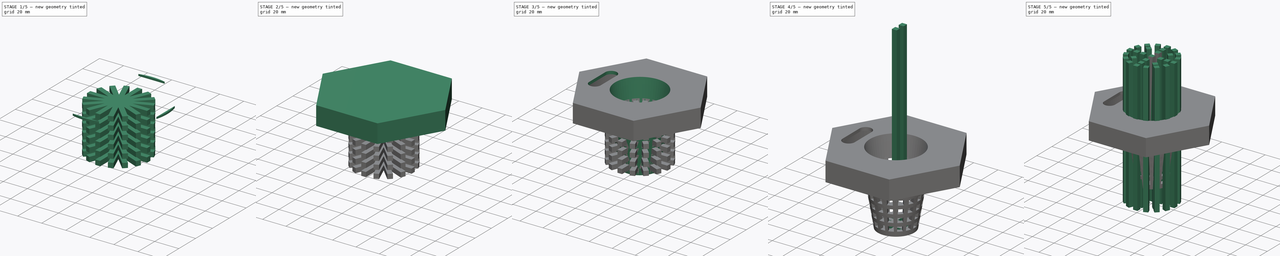
[diagram: build sequence overview — one tinted view per stage of 5, left to right]
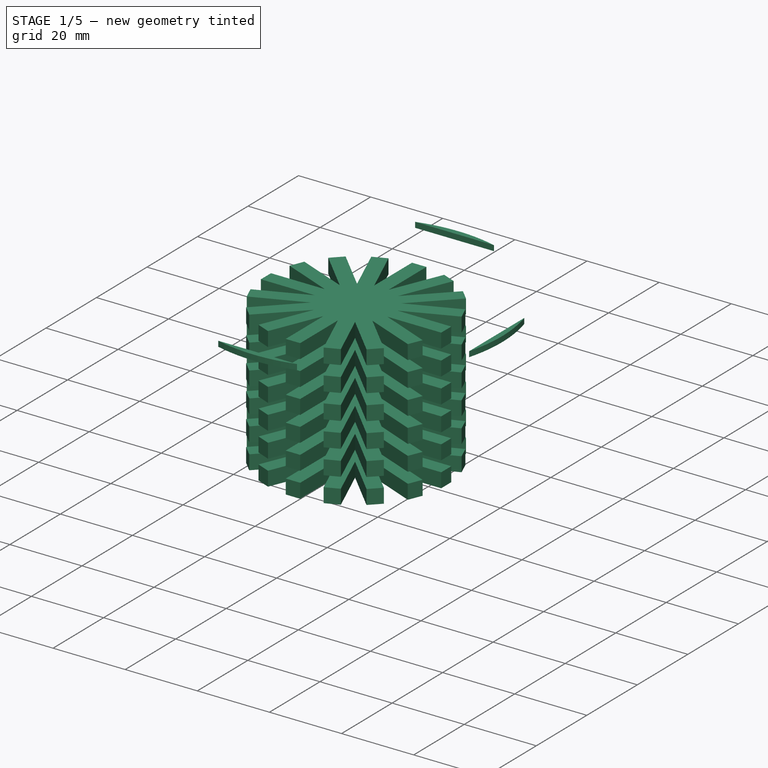
[diagram: stage 1 of 5 — iso view after this stage's code; geometry added in this stage tinted green]
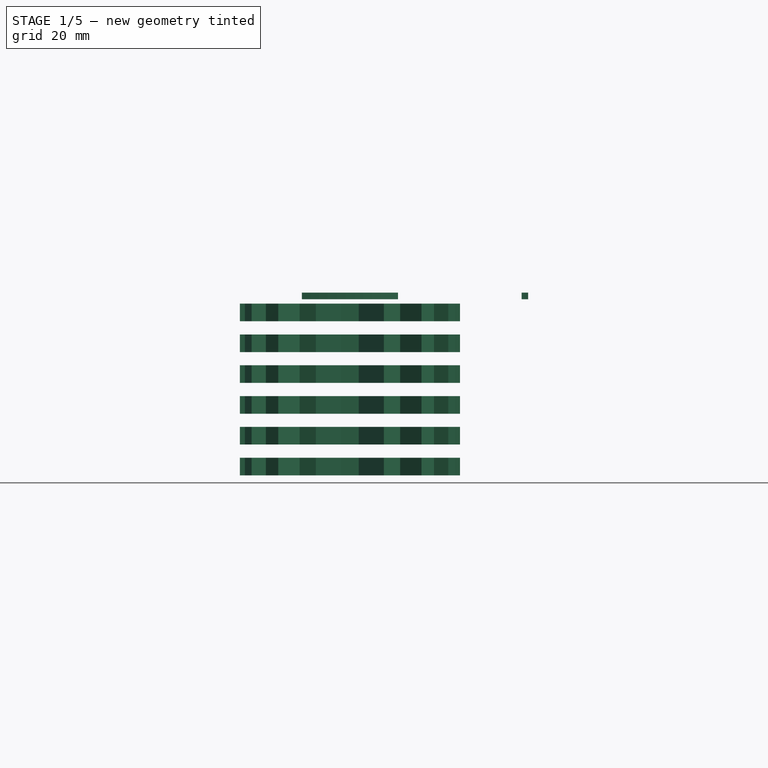
[diagram: stage 1 of 5 — front view after this stage's code; geometry added in this stage tinted green]
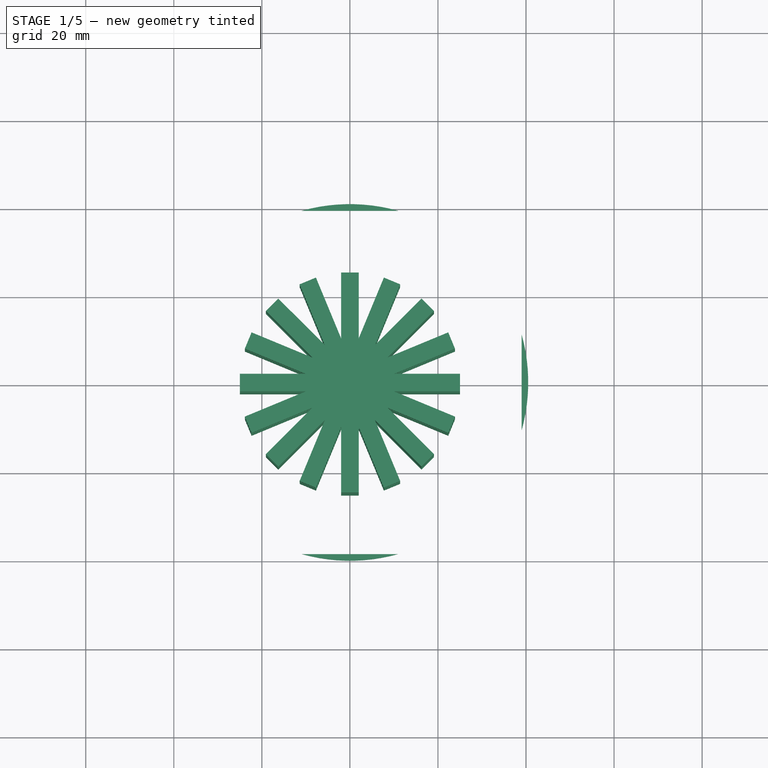
[diagram: stage 1 of 5 — top view after this stage's code; geometry added in this stage tinted green]
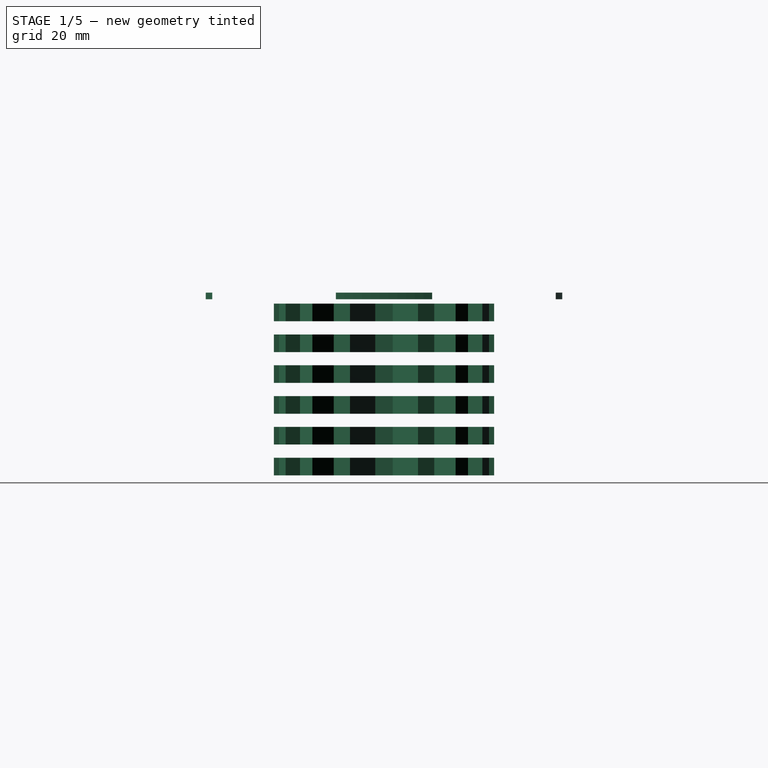
[diagram: stage 1 of 5 — right view after this stage's code; geometry added in this stage tinted green]
FCSTD DOCUMENT  (FreeCAD 0.19R24267 +148 (Git))
Label: HydroLid
License: All rights reserved
LicenseURL: http://en.wikipedia.org/wiki/All_rights_reserved
objects: Sketcher::SketchObject×7, Part::Extrusion×7, Part::Box×6, Part::FeaturePython×6, Part::Cut×5, Part::Cone×2, Part::Compound×2, Part::Fuse×2, Spreadsheet::Sheet×1, App::Part×1
note: 31 computed .brp shape members not serialized (recipe doc carries the construction recipe); baked Part::Feature solids carry a one-line shape summary decoded from their .brp

FEATURE [Part::Extrusion] Extrude001  label="teeth_extrude1"
  Base = -> MirroredSketch
  Dir = (0,0,1)
  DirMode = 2
  FaceMakerClass = Part::FaceMakerBullseye
  LengthFwd = 1.5
  LengthRev = 0
  Solid = true
  Symmetric = false
  expr: LengthFwd = <<parameters>>.jar_lid_teeth_height
FEATURE [Part::Extrusion] Extrude002  label="teeth_extrude2"
  Base = -> MirroredSketch001
  Dir = (0,0,1)
  DirMode = 2
  FaceMakerClass = Part::FaceMakerBullseye
  LengthFwd = 1.5
  LengthRev = 0
  Solid = true
  Symmetric = false
  expr: LengthFwd = <<parameters>>.jar_lid_teeth_height
FEATURE [Part::Extrusion] Extrude003  label="teeth_extrude3"
  Base = -> MirroredSketch002
  Dir = (0,0,1)
  DirMode = 2
  FaceMakerClass = Part::FaceMakerBullseye
  LengthFwd = 1.5
  LengthRev = 0
  Solid = true
  Symmetric = false
  expr: LengthFwd = <<parameters>>.jar_lid_teeth_height
FEATURE [Part::Box] Box004  label="cage_hole_prim"
  AttacherType = Attacher::AttachEngine3D
  Height = 4
  Length = 50
  Placement = pos=(-25,-2,-40) rot=(0,0,1;0rad)
  Width = 4
  expr: .Placement.Base.z = -<<parameters>>.cage_height + <<parameters>>.hexagon_body_height + <<parameters>>.cage_box_spacing + 1mm
  expr: .Placement.Base.y = -<<parameters>>.cage_box_width / 2
  expr: .Placement.Base.x = -<<parameters>>.cage_top_diameter / 2
  expr: Length = <<parameters>>.cage_top_diameter
  expr: Height = <<parameters>>.cage_box_width
  expr: Width = <<parameters>>.cage_box_width
FEATURE [Part::FeaturePython] Array003  label="cage_holes_vertical_array"  # Draft array (typed FeaturePython)
  Angle = 360
  ArrayType = 0
  Axis = (0,0,1)
  Base = -> Box004
  Center = (0,0,0)
  Count = 6
  ExpandArray = false
  Fuse = false
  IntervalAxis = (0,0,0)
  IntervalX = (0,0,0)
  IntervalY = (0,0,0)
  IntervalZ = (0,0,7)
  NumberCircles = 3
  NumberPolar = 5
  NumberX = 1
  NumberY = 1
  NumberZ = 6
  PlacementList = 6 placements: arithmetic series from (-25,-2,-40) step (0,0,7) to (-25,-2,-5)
  RadialDistance = 50
  ScaleList = (6) [(1,1,1),(1,1,1),(1,1,1),(1,1,1),(1,1,1),(1,1,1)]
  Symmetry = 1
  TangentialDistance = 25
  expr: .IntervalZ.z = <<parameters>>.cage_box_width + <<parameters>>.cage_box_spacing
FEATURE [Part::FeaturePython] Array004  label="cage_box_polar_array"  # Draft array (typed FeaturePython)
  Angle = 360
  ArrayType = 1
  Axis = (0,0,1)
  Base = -> Array003
  Center = (0,0,0)
  Count = 16
  ExpandArray = false
  Fuse = false
  IntervalAxis = (0,0,0)
  IntervalX = (50,0,0)
  IntervalY = (0,50,0)
  IntervalZ = (0,0,50)
  NumberCircles = 3
  NumberPolar = 16
  NumberX = 2
  NumberY = 2
  NumberZ = 1
  PlacementList = 16 placements: [(0,0,0),(0,0,0),(0,0,0),(0,0,0),(0,0,0),(0,0,0),(0,0,0),(0,0,0),(0,0,0),(0,0,0),(0,0,0),(0,0,0),(0,0,0),(0,0,0),(0,0,0),(0,0,0)]
  RadialDistance = 50
  ScaleList = (16) [(1,1,1),(1,1,1),(1,1,1),(1,1,1),(1,1,1),(1,1,1),(1,1,1),(1,1,1),(1,1,1),(1,1,1),(1,1,1),(1,1,1),(1,1,1),(1,1,1),(1,1,1),(1,1,1)]
  Symmetry = 1
  TangentialDistance = 25
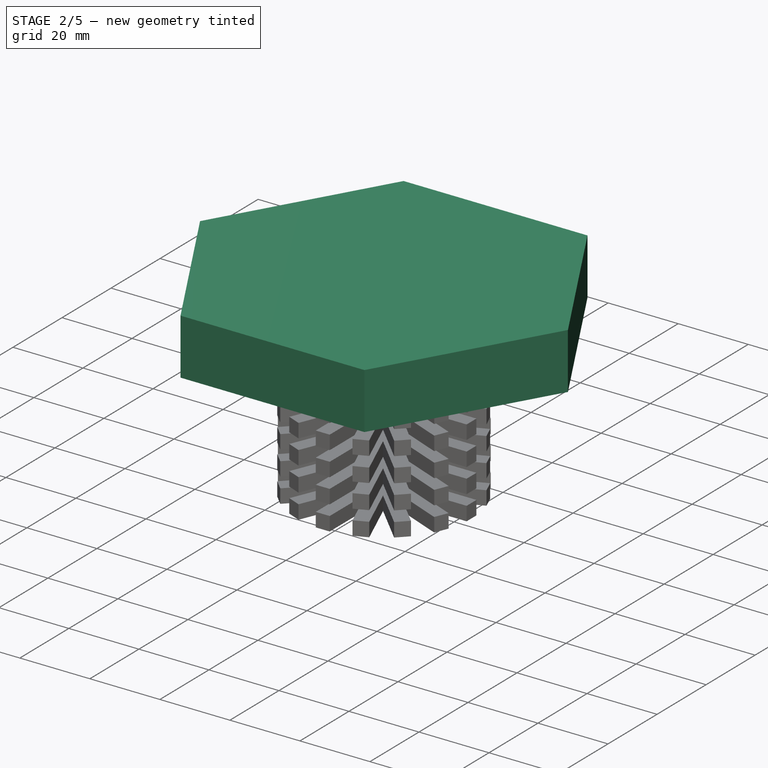
[diagram: stage 2 of 5 — iso view after this stage's code; geometry added in this stage tinted green]
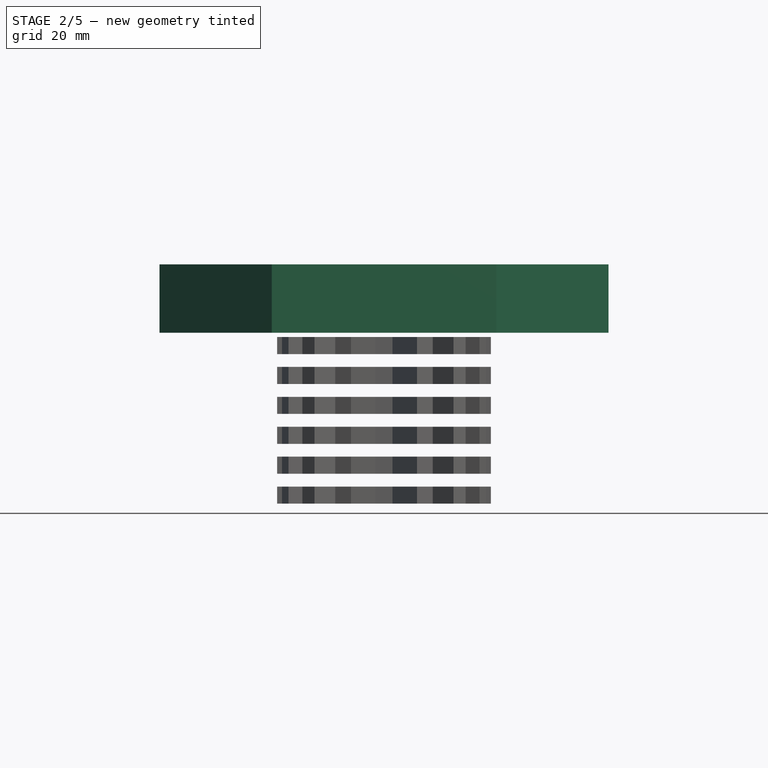
[diagram: stage 2 of 5 — front view after this stage's code; geometry added in this stage tinted green]
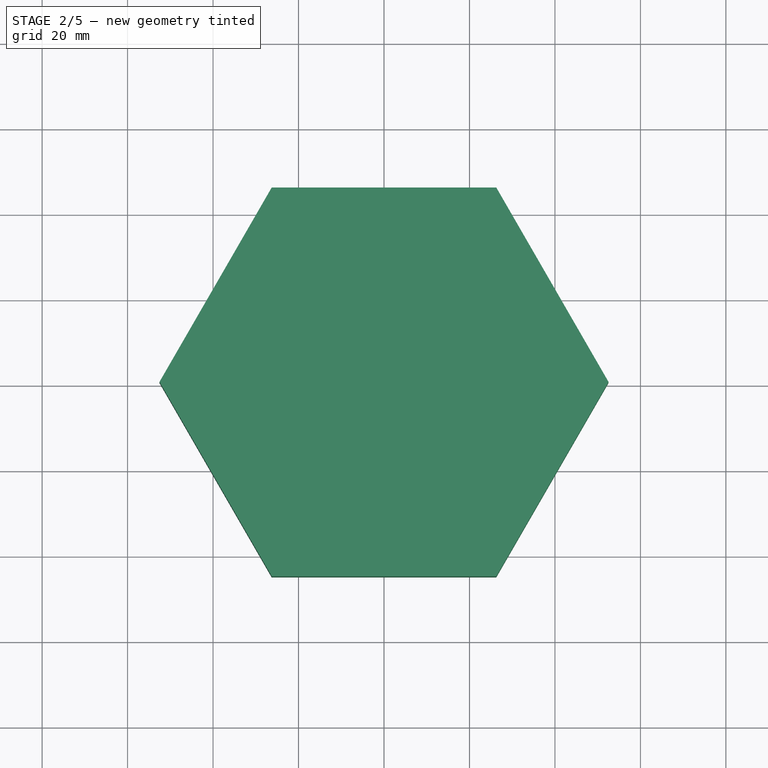
[diagram: stage 2 of 5 — top view after this stage's code; geometry added in this stage tinted green]
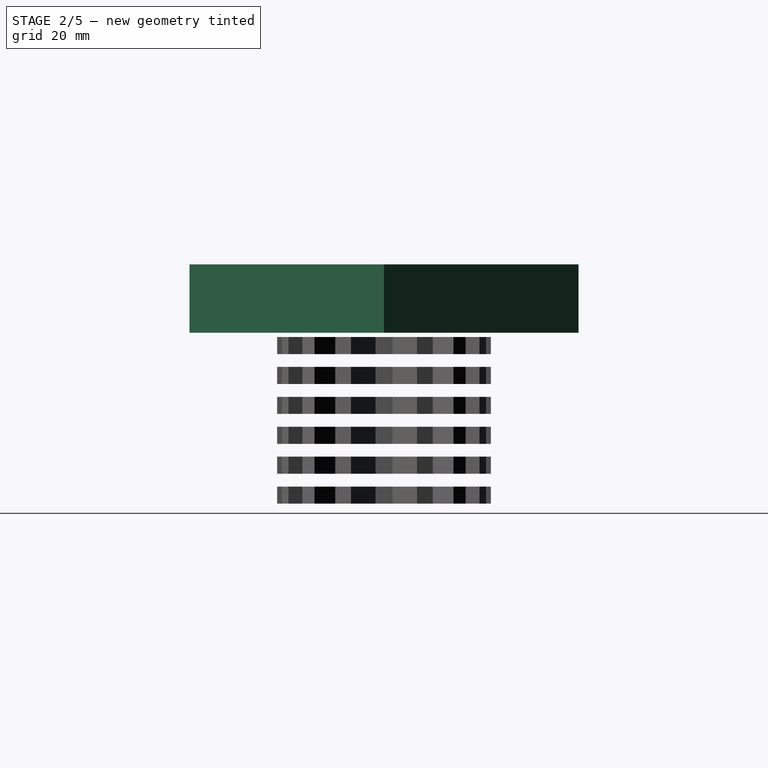
[diagram: stage 2 of 5 — right view after this stage's code; geometry added in this stage tinted green]
FEATURE [Sketcher::SketchObject] Sketch005  label="watering_hole"
  FullyConstrained = true
  MapMode = 5
  expr: Constraints[9] = <<parameters>>.watering_hole_width
  expr: Constraints[8] = Spreadsheet.watering_hole_length
  expr: Constraints[7] = Spreadsheet.watering_hole_length / 2
  expr: Constraints[6] = <<parameters>>.cage_top_diameter / 2 + 2mm
  sketch-geometry (4):
    g0: ArcOfCircle CenterX=-32 CenterY=-10 CenterZ=0 NormalX=0 NormalY=0 NormalZ=1 AngleXU=0 Radius=5 StartAngle=3.14159 EndAngle=6.28319
    g1: ArcOfCircle CenterX=-32 CenterY=10 CenterZ=0 NormalX=0 NormalY=0 NormalZ=1 AngleXU=0 Radius=5 StartAngle=1e-16 EndAngle=3.14159
    g2: LineSegment StartX=-27 StartY=-10 StartZ=0 EndX=-27 EndY=10 EndZ=0
    g3: LineSegment StartX=-37 StartY=-10 StartZ=0 EndX=-37 EndY=10 EndZ=0
  constraints (10):
    c: Tangent(g0,g3) = 1.5708
    c: Tangent(g0,g2) = -1.5708
    c: Tangent(g2,g1) = -1.5708
    c: Tangent(g3,g1) = 1.5708
    c: Vertical(g2)
    c: Equal(g0,g1)
    c: DistanceX(g1,g-1) = 27
    c: DistanceY(g-1,g1) = 10
    c: DistanceY(g0,g1) = 20
    c: DistanceX(g0,g0) = 10
FEATURE [Sketcher::SketchObject] MirroredSketch  label="teeth1"
  FullyConstrained = false
  sketch-geometry (4):
    g0: GeomPoint X=0 Y=-40.5 Z=0
    g1: LineSegment StartX=10.9202 StartY=-39 StartZ=0 EndX=-10.9202 EndY=-39 EndZ=0
    g2: GeomPoint X=0 Y=-39 Z=0
    g3: ArcOfCircle CenterX=1.5e-15 CenterY=-1.63e-14 CenterZ=0 NormalX=0 NormalY=0 NormalZ=1 AngleXU=0 Radius=40.5 StartAngle=4.43938 EndAngle=4.9854
  constraints (5):
    c: Horizontal(g1)
    c: PointOnObject(g2,g1)
    c: Coincident(g3,g1)
    c: Coincident(g3,g1)
    c: PointOnObject(g0,g3)
FEATURE [Sketcher::SketchObject] MirroredSketch001  label="teeth2"
  FullyConstrained = false
  sketch-geometry (4):
    g0: LineSegment StartX=39 StartY=-10.9202 StartZ=0 EndX=39 EndY=10.9202 EndZ=0
    g1: GeomPoint X=39 Y=0 Z=0
    g2: ArcOfCircle CenterX=0 CenterY=0 CenterZ=0 NormalX=0 NormalY=0 NormalZ=1 AngleXU=0 Radius=40.5 StartAngle=6.01017 EndAngle=6.5562
    g3: GeomPoint X=40.5 Y=0 Z=0
  constraints (4):
    c: Vertical(g0)
    c: PointOnObject(g1,g0)
    c: Coincident(g2,g0)
    c: Coincident(g2,g0)
FEATURE [Sketcher::SketchObject] MirroredSketch002  label="teeth3"
  FullyConstrained = false
  sketch-geometry (4):
    g0: GeomPoint X=0 Y=40.5 Z=0
    g1: LineSegment StartX=-10.9202 StartY=39 StartZ=0 EndX=10.9202 EndY=39 EndZ=0
    g2: GeomPoint X=0 Y=39 Z=0
    g3: ArcOfCircle CenterX=-1.5e-15 CenterY=1.63e-14 CenterZ=0 NormalX=0 NormalY=0 NormalZ=1 AngleXU=0 Radius=40.5 StartAngle=1.29778 EndAngle=1.84381
  constraints (5):
    c: Horizontal(g1)
    c: PointOnObject(g2,g1)
    c: Coincident(g3,g1)
    c: Coincident(g3,g1)
    c: PointOnObject(g0,g3)
FEATURE [Part::Extrusion] Extrude  label="teeth_extrude0"
  Base = -> Sketch003
  Dir = (0,0,1)
  DirMode = 2
  FaceMakerClass = Part::FaceMakerBullseye
  LengthFwd = 1.5
  LengthRev = 0
  Solid = true
  Symmetric = false
  expr: LengthFwd = <<parameters>>.jar_lid_teeth_height
FEATURE [Part::Extrusion] Extrude004  label="hex_extrude"
  Base = -> Sketch
  Dir = (0,0,1)
  DirMode = 2
  FaceMakerClass = Part::FaceMakerBullseye
  LengthFwd = 16
  LengthRev = 0
  Solid = true
  Symmetric = false
  expr: LengthFwd = <<parameters>>.hexagon_body_height
FEATURE [Part::Extrusion] Extrude005  label="lid_extrude"
  Base = -> Sketch001
  Dir = (0,0,1)
  DirMode = 2
  FaceMakerClass = Part::FaceMakerBullseye
  LengthFwd = 13.4
  LengthRev = 0
  Solid = true
  Symmetric = false
  expr: LengthFwd = Spreadsheet.jar_lid_height
FEATURE [Part::Cut] Cut  label="hex_lid_cut"
  Base = -> Extrude004
  Tool = -> Extrude005
FEATURE [Part::Compound] Compound001  label="teeth_compound"
  Links = -> [Extrude002,Extrude001,Extrude003,Extrude]
FEATURE [Part::Fuse] Fusion  label="lid_teeth_fuse"
  Base = -> Cut
  Tool = -> Compound001
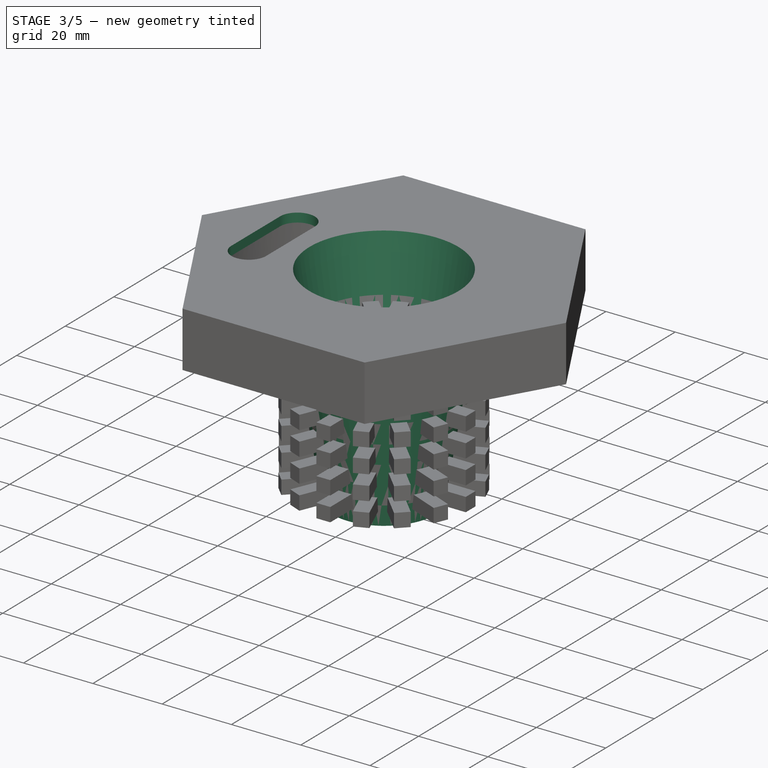
[diagram: stage 3 of 5 — iso view after this stage's code; geometry added in this stage tinted green]
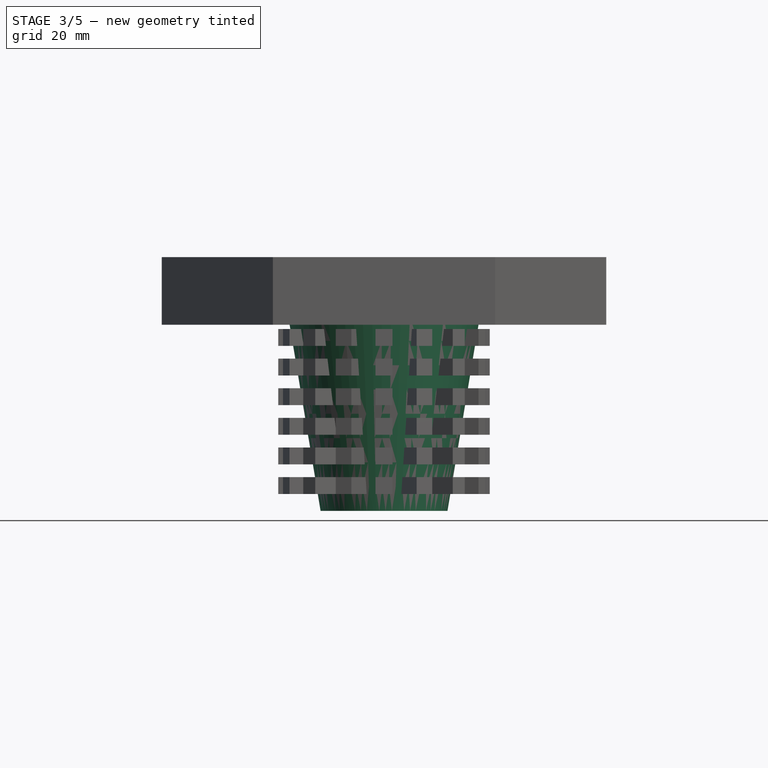
[diagram: stage 3 of 5 — front view after this stage's code; geometry added in this stage tinted green]
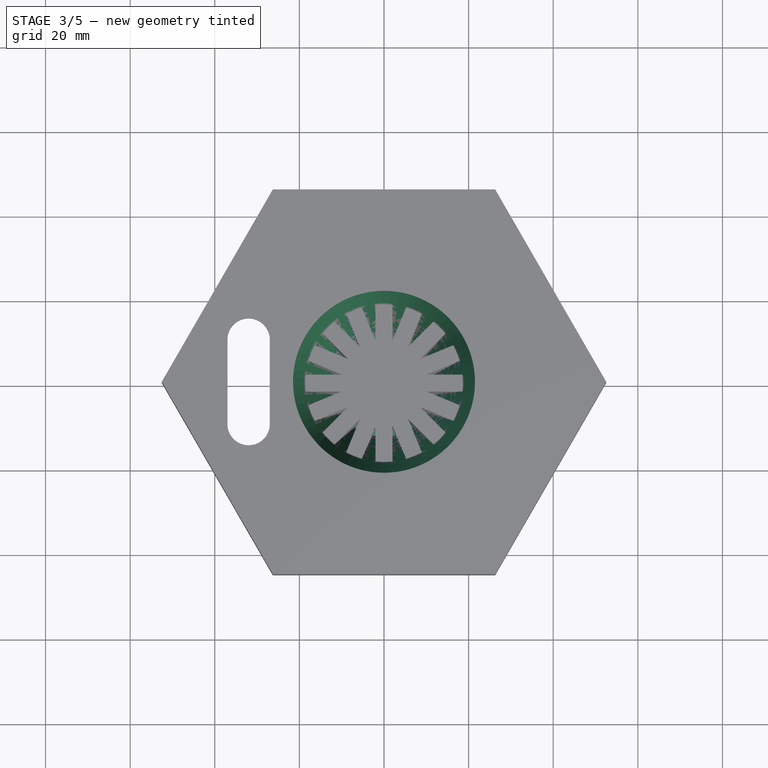
[diagram: stage 3 of 5 — top view after this stage's code; geometry added in this stage tinted green]
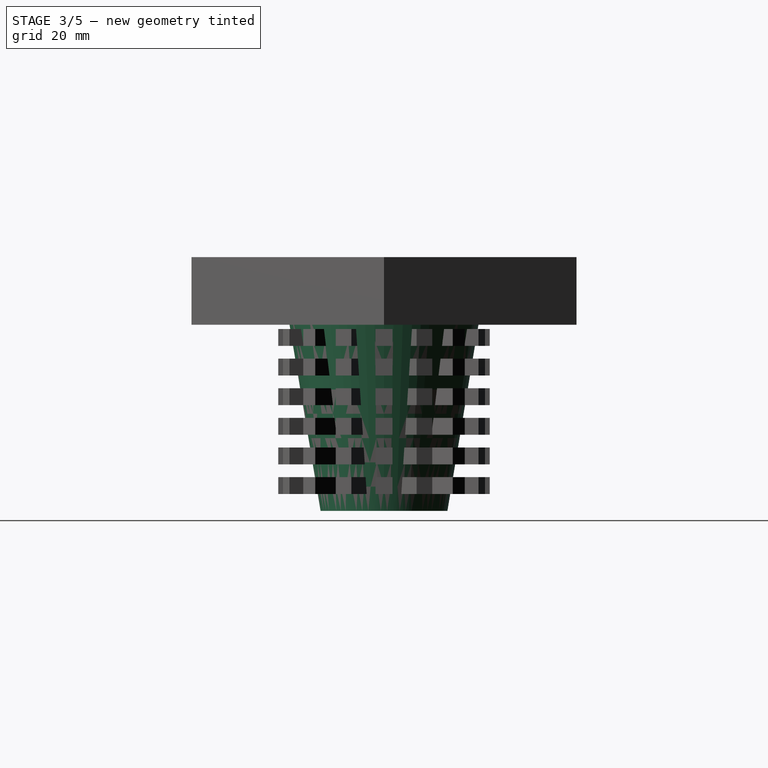
[diagram: stage 3 of 5 — right view after this stage's code; geometry added in this stage tinted green]
FEATURE [Spreadsheet::Sheet] Spreadsheet  label="parameters"
  cells = A1=Variable Parameters; A2=jar_lid_diameter; B2(jar_lid_diameter)==81mm; A3=watering_hole_width; B3(watering_hole_width)==10mm; A4=watering_hole_length; B4(watering_hole_length)==20mm; A5=cage_top_diameter; B5(cage_top_diameter)==50mm; A6=cage_bottom_diameter; B6(cage_bottom_diameter)==30mm; A7=cage_height; B7(cage_height)==60mm; A11=Design Parameters; A12=jar_lid_height; B12(jar_lid_height)==13.4mm; A13=jar_lid_teeth; B13(jar_lid_teeth)==1.5mm; A14=jar_lid_teeth_height; B14(jar_lid_teeth_height)==1.5mm; A15=hexagon_meat; B15(hexagon_meat)==5mm; A16=hexagon_radius; B16(hexagon_radius)==(jar_lid_diameter / 2 + hexagon_meat) / 0.866; A17=hexagon_body_height; B17(hexagon_body_height)==16mm; A18=cage_meat; B18(cage_meat)==3mm; A19=cage_box_width; B19(cage_box_width)==4mm; A20=cage_box_spacing; B20(cage_box_spacing)==3mm
FEATURE [Sketcher::SketchObject] Sketch  label="hex_body"
  FullyConstrained = true
  expr: Constraints[19] = Spreadsheet.hexagon_radius
  sketch-geometry (7):
    g0: LineSegment StartX=52.5404 StartY=0 StartZ=0 EndX=26.2702 EndY=45.5013 EndZ=0
    g1: LineSegment StartX=26.2702 StartY=45.5013 StartZ=0 EndX=-26.2702 EndY=45.5013 EndZ=0
    g2: LineSegment StartX=-26.2702 StartY=45.5013 StartZ=0 EndX=-52.5404 EndY=7.1e-15 EndZ=0
    g3: LineSegment StartX=-52.5404 StartY=7.1e-15 StartZ=0 EndX=-26.2702 EndY=-45.5013 EndZ=0
    g4: LineSegment StartX=-26.2702 StartY=-45.5013 StartZ=0 EndX=26.2702 EndY=-45.5013 EndZ=0
    g5: LineSegment StartX=26.2702 StartY=-45.5013 StartZ=0 EndX=52.5404 EndY=0 EndZ=0
    g6: Circle CenterX=0 CenterY=0 CenterZ=0 NormalX=0 NormalY=0 NormalZ=1 AngleXU=0 Radius=52.5404
  constraints (16):
    c: Coincident(g0,g1)
    c: Coincident(g1,g2)
    c: Coincident(g2,g3)
    c: Coincident(g3,g4)
    c: Coincident(g4,g5)
    c: Coincident(g5,g0)
    c: Equal(g0, g1-g5) x5
    c: PointOnObject(g0,g6)
    c: PointOnObject(g1,g6)
    c: PointOnObject(g2,g6)
    c: PointOnObject(g3,g6)
    c: PointOnObject(g4,g6)
    c: PointOnObject(g5,g6)
    c: Coincident(g6,g-1)
    c: PointOnObject(g0,g-1)
    c: DistanceX(g-1,g0) = 52.5404
FEATURE [Sketcher::SketchObject] Sketch001  label="lid_inside"
  FullyConstrained = true
  MapMode = 2
  Support = -> [Sketch]
  expr: Constraints[1] = <<parameters>>.jar_lid_diameter / 2
  sketch-geometry (1):
    g0: Circle CenterX=0 CenterY=0 CenterZ=0 NormalX=0 NormalY=0 NormalZ=1 AngleXU=0 Radius=40.5
  constraints (2):
    c: Coincident(g0,g-1)
    c: Radius(g0) = 40.5
FEATURE [Sketcher::SketchObject] Sketch003  label="teeth0"
  ExternalGeometry = -> [Sketch001]
  FullyConstrained = true
  expr: Constraints[9] = <<parameters>>.jar_lid_teeth
  sketch-geometry (4):
    g0: LineSegment StartX=-39 StartY=10.9202 StartZ=0 EndX=-39 EndY=-10.9202 EndZ=0
    g1: GeomPoint X=-39 Y=0 Z=0
    g2: ArcOfCircle CenterX=0 CenterY=0 CenterZ=0 NormalX=0 NormalY=0 NormalZ=1 AngleXU=0 Radius=40.5 StartAngle=2.86858 EndAngle=3.41461
    g3: GeomPoint X=-40.5 Y=0 Z=0
  constraints (10):
    c: PointOnObject(g0,g-3)
    c: Vertical(g0)
    c: PointOnObject(g1,g0)
    c: PointOnObject(g1,g-1)
    c: Coincident(g2,g-1)
    c: Coincident(g2,g0)
    c: Coincident(g2,g0)
    c: PointOnObject(g3,g-3)
    c: PointOnObject(g3,g-1)
    c: DistanceX(g3,g1) = 1.5
FEATURE [Part::Cone] Cone  label="cage_out"
  Angle = 360
  AttacherType = Attacher::AttachEngine3D
  Height = 60
  Placement = pos=(0,0,-44) rot=(0,0,1;0rad)
  Radius1 = 15
  Radius2 = 25
  expr: Radius1 = <<parameters>>.cage_bottom_diameter / 2
  expr: Radius2 = <<parameters>>.cage_top_diameter / 2
  expr: .Placement.Base.z = -<<parameters>>.cage_height + <<parameters>>.hexagon_body_height
  expr: Height = <<parameters>>.cage_height
FEATURE [Part::Cone] Cone001  label="cage_inner"
  Angle = 360
  AttacherType = Attacher::AttachEngine3D
  Height = 60
  Placement = pos=(0,0,-41) rot=(0,0,1;0rad)
  Radius1 = 12
  Radius2 = 22
  expr: .Placement.Base.z = -<<parameters>>.cage_height + <<parameters>>.hexagon_body_height + <<parameters>>.cage_meat
  expr: Radius1 = <<parameters>>.cage_bottom_diameter / 2 - <<parameters>>.cage_meat
  expr: Radius2 = <<parameters>>.cage_top_diameter / 2 - <<parameters>>.cage_meat
  expr: Height = <<parameters>>.cage_height
FEATURE [Part::Extrusion] Extrude006  label="water_hole_extrude"
  Base = -> Sketch005
  Dir = (0,0,1)
  DirMode = 2
  FaceMakerClass = Part::FaceMakerBullseye
  LengthFwd = 16
  LengthRev = 0
  Solid = true
  Symmetric = false
  expr: LengthFwd = <<parameters>>.hexagon_body_height
FEATURE [Part::Fuse] Fusion001  label="lid_cage_fuse"
  Base = -> Cone
  Tool = -> Fusion
FEATURE [Part::Cut] Cut001  label="lid_cage_cut"
  Base = -> Fusion001
  Tool = -> Cone001
FEATURE [Part::Cut] Cut002  label="lid_hole_cut"
  Base = -> Cut001
  Tool = -> Extrude006
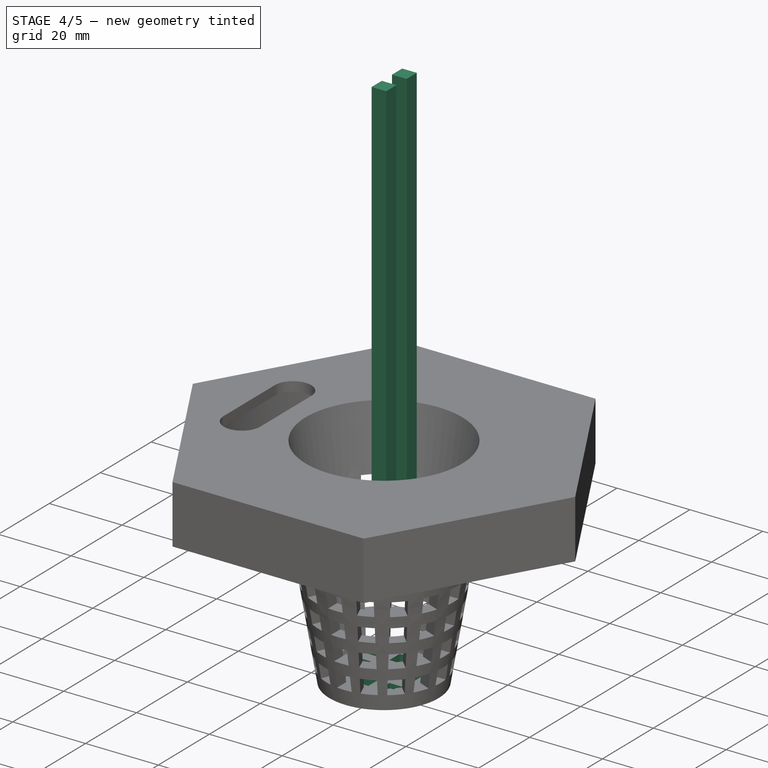
[diagram: stage 4 of 5 — iso view after this stage's code; geometry added in this stage tinted green]
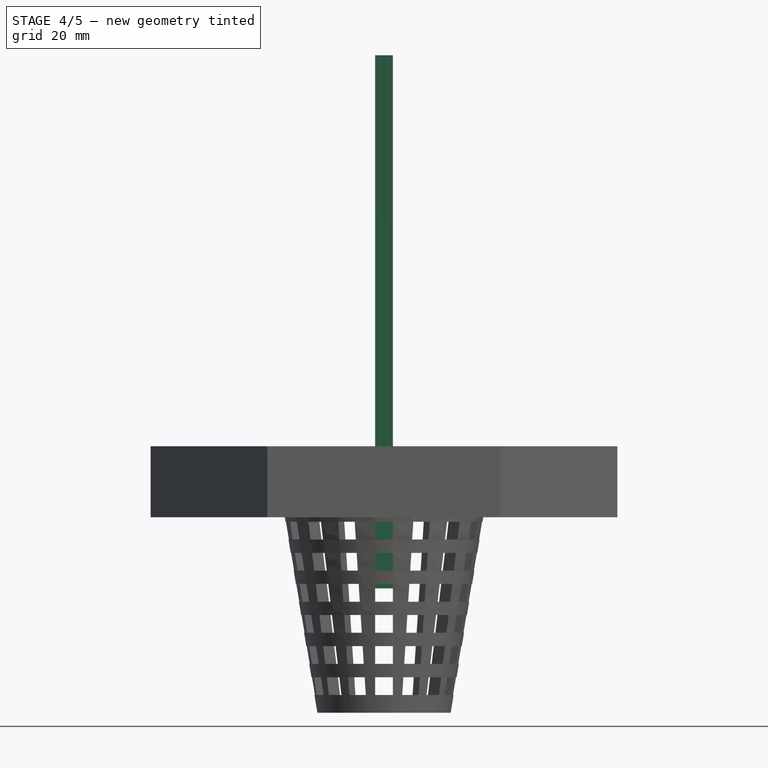
[diagram: stage 4 of 5 — front view after this stage's code; geometry added in this stage tinted green]
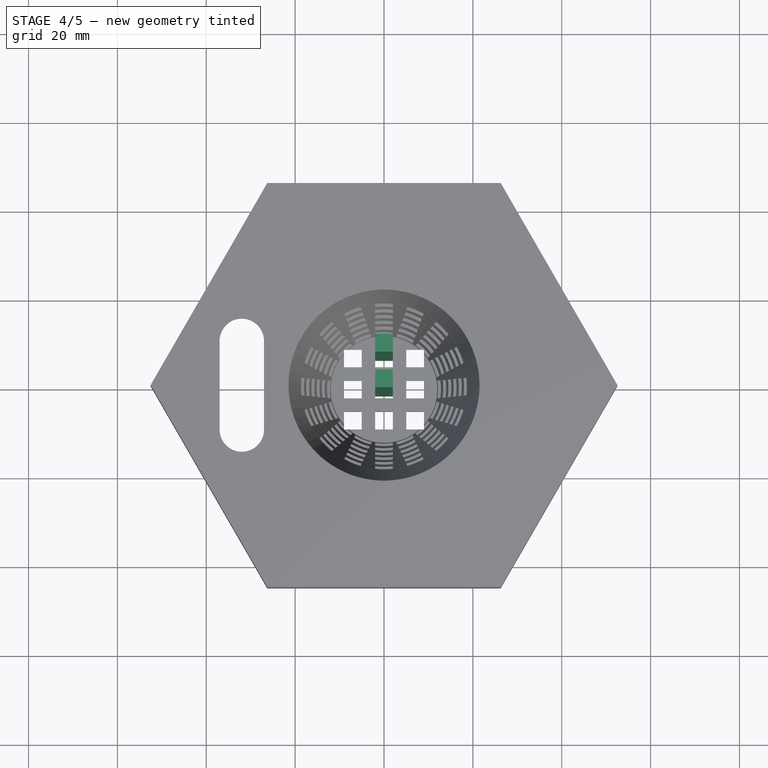
[diagram: stage 4 of 5 — top view after this stage's code; geometry added in this stage tinted green]
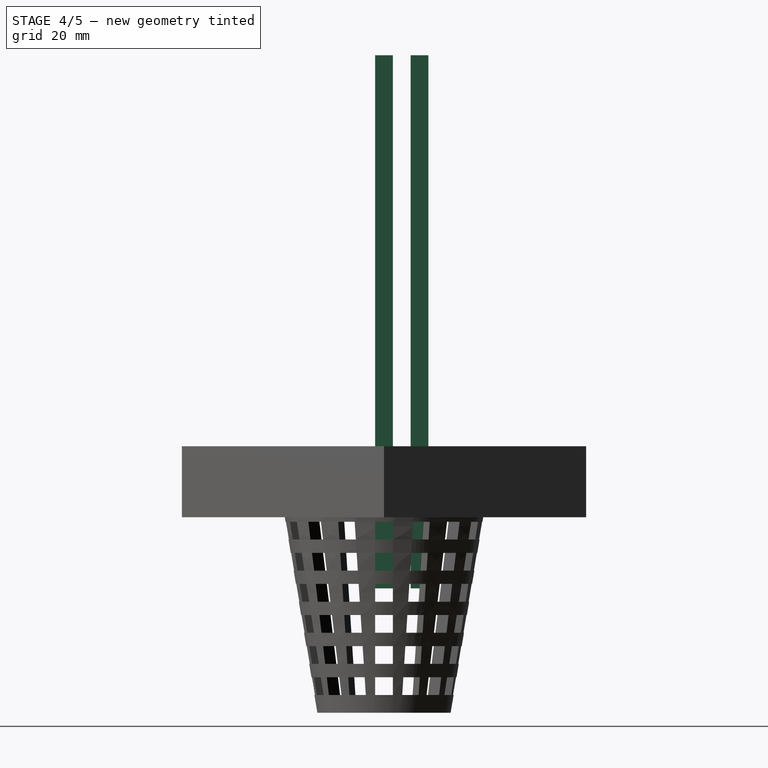
[diagram: stage 4 of 5 — right view after this stage's code; geometry added in this stage tinted green]
FEATURE [Part::Box] Box002  label="cage_inner_boxes"
  AttacherType = Attacher::AttachEngine3D
  Height = 120
  Length = 4
  Placement = pos=(-2,6,-16) rot=(0,0,1;0rad)
  Width = 4
  expr: Height = <<parameters>>.cage_height * 2
  expr: .Placement.Base.z = -<<parameters>>.hexagon_body_height
  expr: Width = <<parameters>>.cage_box_width
  expr: Length = <<parameters>>.cage_box_width
  expr: .Placement.Base.x = -<<parameters>>.cage_box_width / 2
FEATURE [Part::Box] Box003  label="Cube"
  AttacherType = Attacher::AttachEngine3D
  Height = 120
  Length = 4
  Placement = pos=(-2,-2,-16) rot=(0,0,1;0rad)
  Width = 4
  expr: Height = <<parameters>>.cage_height * 2
  expr: .Placement.Base.z = -<<parameters>>.hexagon_body_height
  expr: .Placement.Base.y = -<<parameters>>.cage_box_width / 2
  expr: .Placement.Base.x = -<<parameters>>.cage_box_width / 2
  expr: Width = <<parameters>>.cage_box_width
  expr: Length = <<parameters>>.cage_box_width
FEATURE [Part::Box] Box005  label="cage_box_bottom_prim"
  AttacherType = Attacher::AttachEngine3D
  Height = 60
  Length = 4
  Placement = pos=(-9,-9,-60) rot=(0,0,1;0rad)
  Width = 4
  expr: Height = <<parameters>>.cage_height
  expr: .Placement.Base.z = -<<parameters>>.cage_height
  expr: .Placement.Base.y = -<<parameters>>.cage_box_width / 2 - <<parameters>>.cage_box_spacing - <<parameters>>.cage_box_width
  expr: .Placement.Base.x = -<<parameters>>.cage_box_width / 2 - <<parameters>>.cage_box_spacing - <<parameters>>.cage_box_width
  expr: Length = <<parameters>>.cage_box_width
  expr: Width = <<parameters>>.cage_box_width
FEATURE [Part::FeaturePython] Array005  label="cage_box_bottom_array"  # Draft array (typed FeaturePython)
  Angle = 360
  ArrayType = 0
  Axis = (0,0,1)
  Base = -> Box005
  Center = (0,0,0)
  Count = 9
  ExpandArray = false
  Fuse = false
  IntervalAxis = (0,0,0)
  IntervalX = (7,0,0)
  IntervalY = (0,7,0)
  IntervalZ = (0,0,0)
  NumberCircles = 3
  NumberPolar = 5
  NumberX = 3
  NumberY = 3
  NumberZ = 1
  PlacementList = 9 placements: [(-9,-9,-60),(-9,-2,-60),(-9,5,-60),(-2,-9,-60),(-2,-2,-60),(-2,5,-60),(5,-9,-60),(5,-2,-60),(5,5,-60)]
  RadialDistance = 50
  ScaleList = (9) [(1,1,1),(1,1,1),(1,1,1),(1,1,1),(1,1,1),(1,1,1),(1,1,1),(1,1,1),(1,1,1)]
  Symmetry = 1
  TangentialDistance = 25
  expr: .IntervalY.y = <<parameters>>.cage_box_width + <<parameters>>.cage_box_spacing
  expr: .IntervalX.x = <<parameters>>.cage_box_width + <<parameters>>.cage_box_spacing
FEATURE [Part::Cut] Cut003  label="cage_holes_vertical_cut"
  Base = -> Cut002
  Tool = -> Array004
FEATURE [Part::Cut] Cut004  label="cage_holes_bottom_cut"
  Base = -> Cut003
  Tool = -> Array005
FEATURE [App::Part] Part  label="HydroLid"
  Group = -> [MirroredSketch,Extrude001,MirroredSketch001,Extrude002,MirroredSketch002,Extrude003,Sketch003,Sketch,Sketch001,Extrude,Extrude004,Extrude005,Sketch005,Extrude006,Cone001,Cone,Cut,Compound001,Fusion,Fusion001,Cut001,Cut002,Box004,Array003,Array004,Box005,Array005,Cut003,Cut004]
  Origin = -> Origin
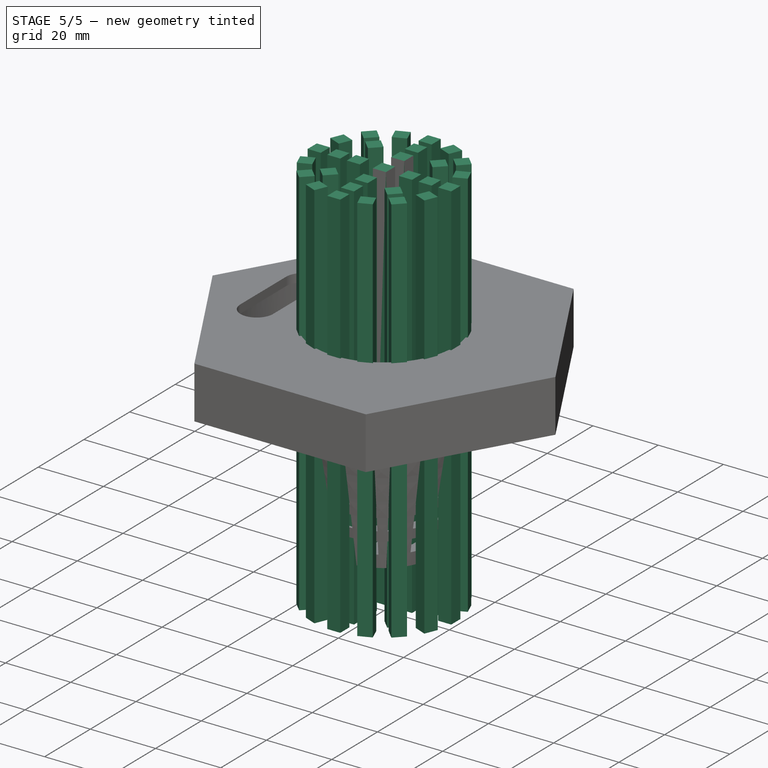
[diagram: stage 5 of 5 — iso view after this stage's code; geometry added in this stage tinted green]
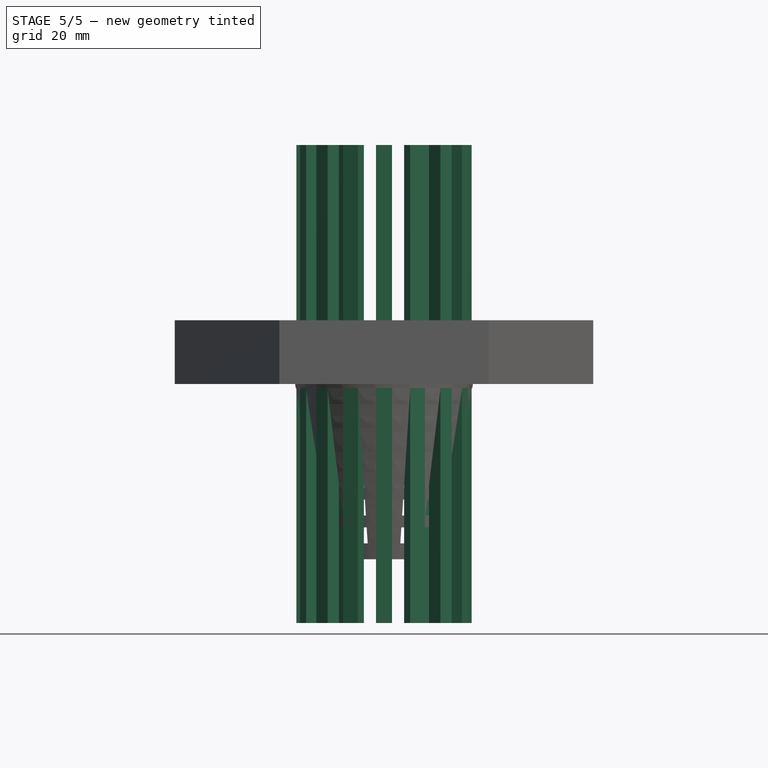
[diagram: stage 5 of 5 — front view after this stage's code; geometry added in this stage tinted green]
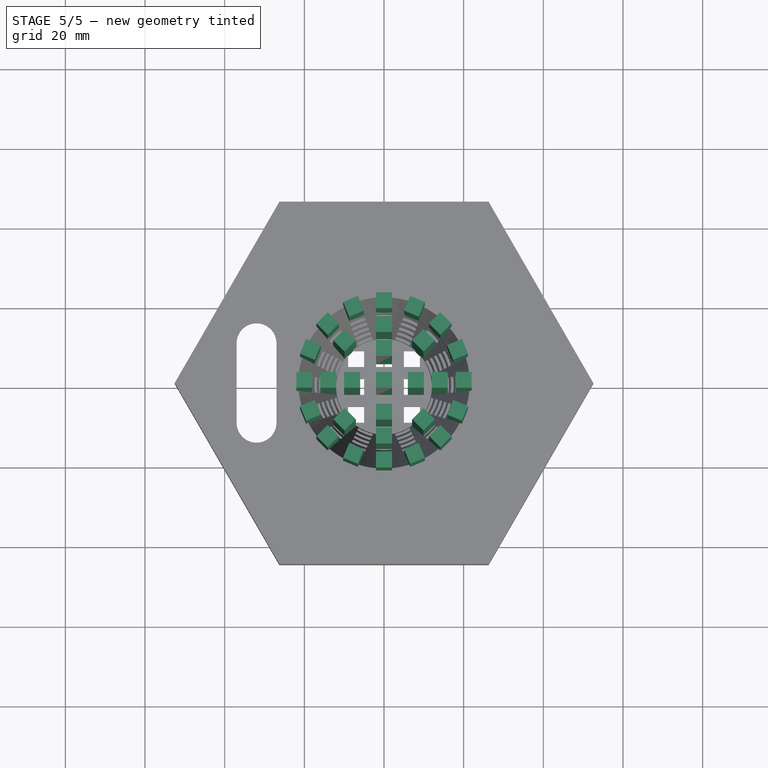
[diagram: stage 5 of 5 — top view after this stage's code; geometry added in this stage tinted green]
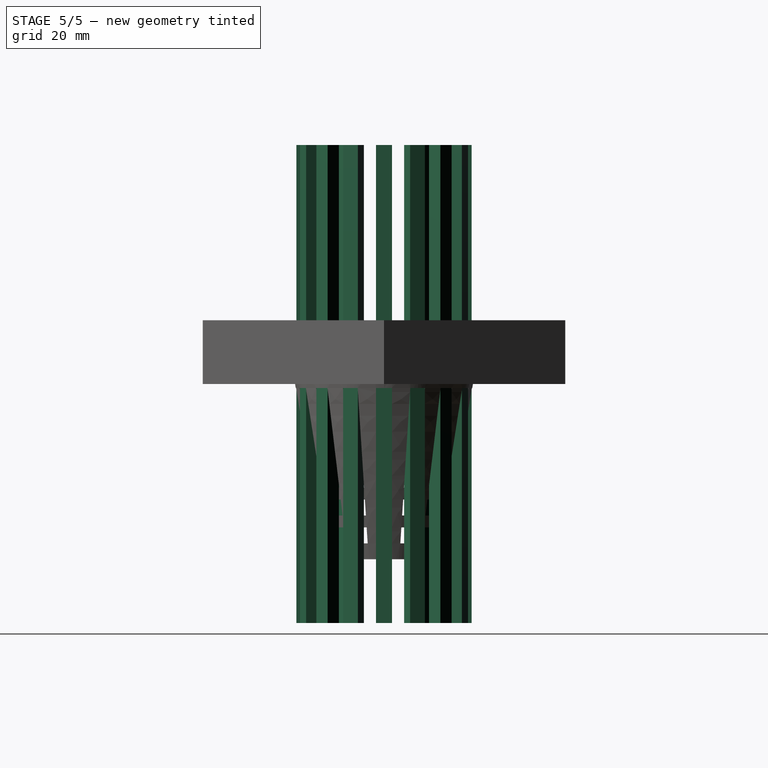
[diagram: stage 5 of 5 — right view after this stage's code; geometry added in this stage tinted green]
FEATURE [Part::Box] Box  label="cage_outer_boxes"
  AttacherType = Attacher::AttachEngine3D
  Height = 120
  Length = 4
  Placement = pos=(-2,18,-16) rot=(0,0,1;0rad)
  Width = 4
  expr: Height = <<parameters>>.cage_height * 2
  expr: .Placement.Base.z = -<<parameters>>.hexagon_body_height
  expr: Length = <<parameters>>.cage_box_width
  expr: Width = <<parameters>>.cage_box_width
  expr: .Placement.Base.x = -<<parameters>>.cage_box_width / 2
FEATURE [Part::Box] Box001  label="cage_middle_boxes"
  AttacherType = Attacher::AttachEngine3D
  Height = 120
  Length = 4
  Placement = pos=(-2,12,-16) rot=(0,0,1;0rad)
  Width = 4
  expr: Height = <<parameters>>.cage_height * 2
  expr: .Placement.Base.z = -<<parameters>>.hexagon_body_height
  expr: .Placement.Base.x = -<<parameters>>.cage_box_width / 2
  expr: Width = <<parameters>>.cage_box_width
  expr: Length = <<parameters>>.cage_box_width
FEATURE [Part::FeaturePython] Array  # Draft array (typed FeaturePython)
  Angle = 360
  ArrayType = 1
  Axis = (0,0,1)
  Base = -> Box
  Center = (0,0,0)
  Count = 16
  ExpandArray = false
  Fuse = false
  IntervalAxis = (0,0,0)
  IntervalX = (50,0,0)
  IntervalY = (0,50,0)
  IntervalZ = (0,0,50)
  NumberCircles = 3
  NumberPolar = 16
  NumberX = 2
  NumberY = 2
  NumberZ = 1
  PlacementList = 16 placements: [(-2,18,-16),(-8.73606,15.8645,-16),(-14.1421,11.3137,-16),(-17.3952,5.04054,-16),(-18,-2,-16),(-15.8645,-8.73606,-16),(-11.3137,-14.1421,-16),(-5.04054,-17.3952,-16),(2,-18,-16),(8.73606,-15.8645,-16),(14.1421,-11.3137,-16),(17.3952,-5.04054,-16),(18,2,-16),(15.8645,8.73606,-16),(11.3137,14.1421,-16),(5.04054,17.3952,-16)]
  RadialDistance = 50
  ScaleList = (16) [(1,1,1),(1,1,1),(1,1,1),(1,1,1),(1,1,1),(1,1,1),(1,1,1),(1,1,1),(1,1,1),(1,1,1),(1,1,1),(1,1,1),(1,1,1),(1,1,1),(1,1,1),(1,1,1)]
  Symmetry = 1
  TangentialDistance = 25
FEATURE [Part::FeaturePython] Array001  # Draft array (typed FeaturePython)
  Angle = 360
  ArrayType = 1
  Axis = (0,0,1)
  Base = -> Box001
  Center = (0,0,0)
  Count = 8
  ExpandArray = false
  Fuse = false
  IntervalAxis = (0,0,0)
  IntervalX = (50,0,0)
  IntervalY = (0,50,0)
  IntervalZ = (0,0,50)
  NumberCircles = 3
  NumberPolar = 8
  NumberX = 2
  NumberY = 2
  NumberZ = 1
  PlacementList = 8 placements: [(-2,12,-16),(-9.89949,7.07107,-16),(-12,-2,-16),(-7.07107,-9.89949,-16),(2,-12,-16),(9.89949,-7.07107,-16),(12,2,-16),(7.07107,9.89949,-16)]
  RadialDistance = 50
  ScaleList = (8) [(1,1,1),(1,1,1),(1,1,1),(1,1,1),(1,1,1),(1,1,1),(1,1,1),(1,1,1)]
  Symmetry = 1
  TangentialDistance = 25
FEATURE [Part::FeaturePython] Array002  # Draft array (typed FeaturePython)
  Angle = 360
  ArrayType = 1
  Axis = (0,0,1)
  Base = -> Box002
  Center = (0,0,0)
  Count = 4
  ExpandArray = false
  Fuse = false
  IntervalAxis = (0,0,0)
  IntervalX = (50,0,0)
  IntervalY = (0,50,0)
  IntervalZ = (0,0,50)
  NumberCircles = 3
  NumberPolar = 4
  NumberX = 2
  NumberY = 2
  NumberZ = 1
  PlacementList = 4 placements: [(-2,6,-16),(-6,-2,-16),(2,-6,-16),(6,2,-16)]
  RadialDistance = 50
  ScaleList = (4) [(1,1,1),(1,1,1),(1,1,1),(1,1,1)]
  Symmetry = 1
  TangentialDistance = 25
FEATURE [Part::Compound] Compound
  Links = -> [Array,Array001,Array002,Box003]
  Placement = pos=(0,0,-44) rot=(0,0,1;0rad)
  expr: .Placement.Base.z = -<<parameters>>.cage_height + <<parameters>>.hexagon_body_height
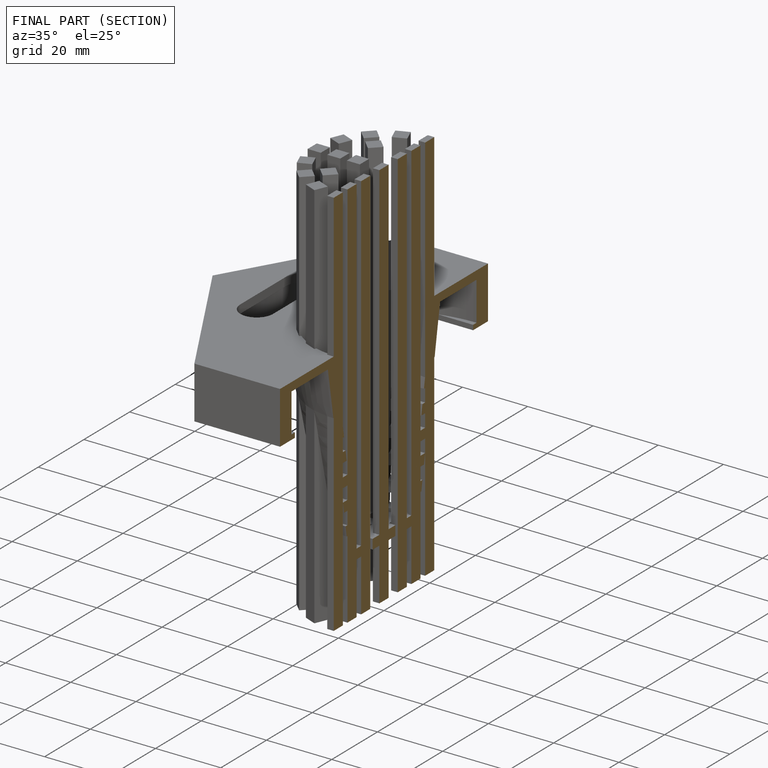
[diagram: finished part — half-section view (interior)]
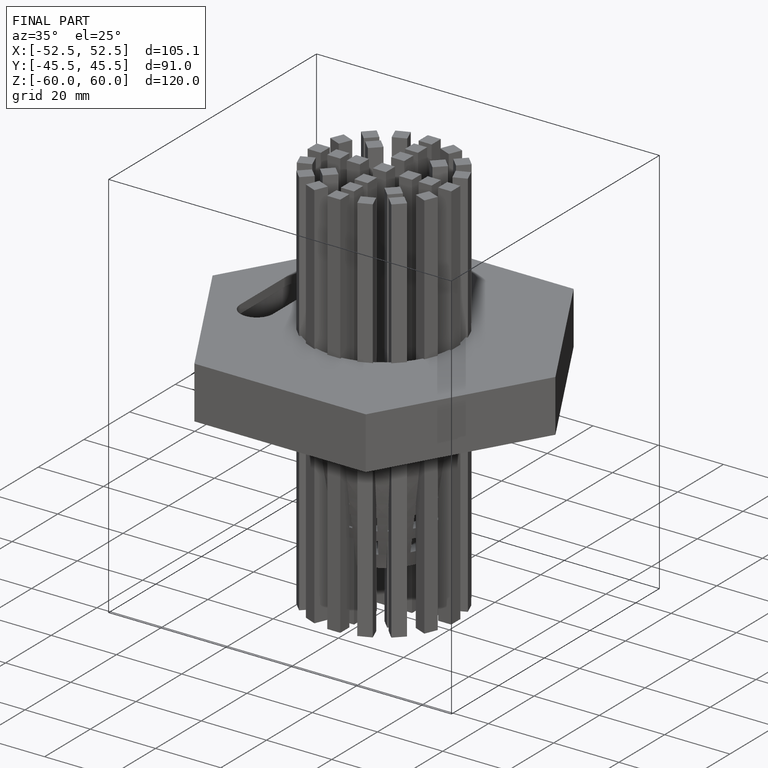
[diagram: finished part — iso view with bounding-box wireframe]
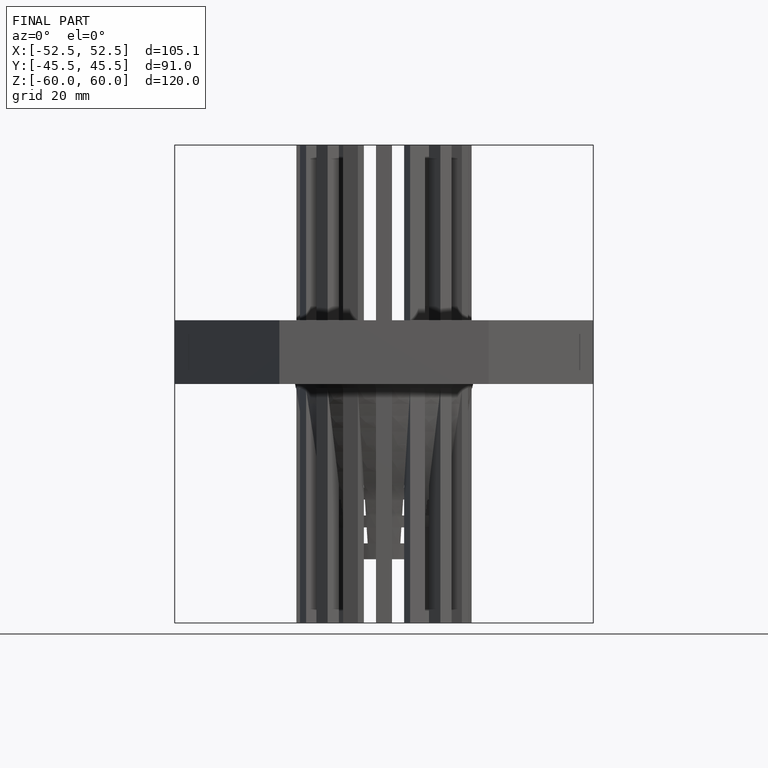
[diagram: finished part — front view with bounding-box wireframe]
